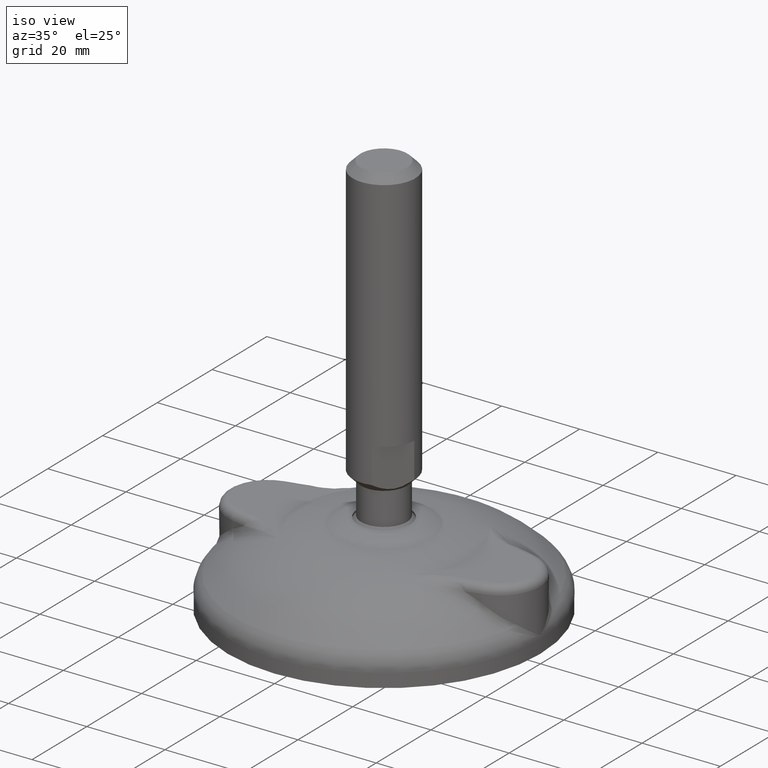
[diagram: clean part render]
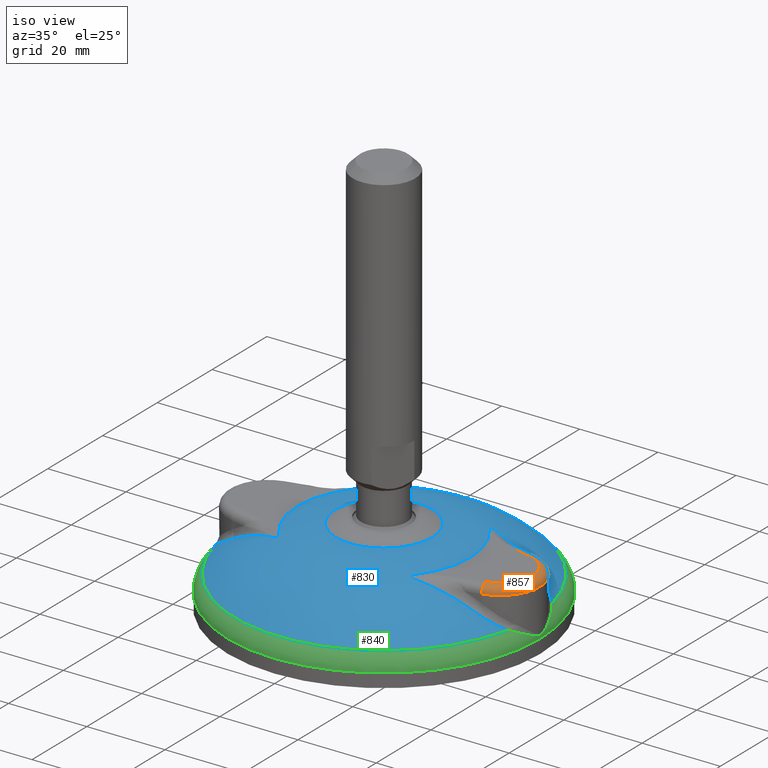
[diagram: same view with three faces highlighted in distinct colors, each labeled with its STEP entity id]
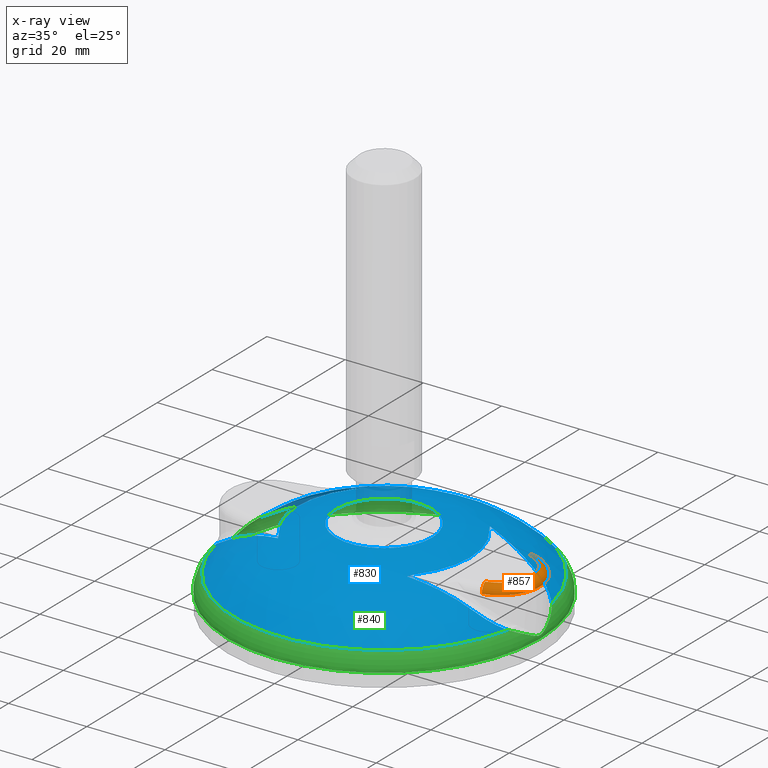
[diagram: x-ray of the same camera — body ghosted, the three highlighted faces saturated]
A machine part, iso view with three faces highlighted in distinct colors.
The next image is the same camera in x-ray (body ghosted, the three faces saturated) — at least one of them is partly hidden behind the body in this view.
Their STEP definitions:

[orange] entity #857 — the highlighted toroidal blend (fillet) surface has major radius 8.271 mm and minor (blend) radius 2 mm.
#16=TOROIDAL_SURFACE('',#959,8.2709865184655,2.);
#180=FACE_OUTER_BOUND('',#232,.T.);
#232=EDGE_LOOP('',(#684,#685,#686,#687));
#277=CIRCLE('',#939,10.2709865184655);
#287=CIRCLE('',#955,8.2709865184655);
#289=CIRCLE('',#958,2.);
#290=CIRCLE('',#960,2.);
#351=VERTEX_POINT('',#1614);
#355=VERTEX_POINT('',#1642);
#365=VERTEX_POINT('',#1929);
#366=VERTEX_POINT('',#1931);
#450=EDGE_CURVE('',#355,#351,#277,.T.);
#474=EDGE_CURVE('',#366,#365,#287,.T.);
#478=EDGE_CURVE('',#365,#355,#289,.T.);
#479=EDGE_CURVE('',#366,#351,#290,.T.);
#684=ORIENTED_EDGE('',*,*,#478,.T.);
#685=ORIENTED_EDGE('',*,*,#450,.T.);
#686=ORIENTED_EDGE('',*,*,#479,.F.);
#687=ORIENTED_EDGE('',*,*,#474,.T.);
#857=ADVANCED_FACE('',(#180),#16,.T.);
#939=AXIS2_PLACEMENT_3D('',#1643,#1090,#1091);
#955=AXIS2_PLACEMENT_3D('',#1932,#1127,#1128);
#958=AXIS2_PLACEMENT_3D('',#1977,#1134,#1135);
#959=AXIS2_PLACEMENT_3D('',#1978,#1136,#1137);
#960=AXIS2_PLACEMENT_3D('',#1979,#1138,#1139);
#1090=DIRECTION('center_axis',(0.,0.,1.));
#1091=DIRECTION('ref_axis',(1.,1.09042397371664E-16,0.));
#1127=DIRECTION('center_axis',(0.,0.,-1.));
#1128=DIRECTION('ref_axis',(1.,1.09042397371664E-16,0.));
#1134=DIRECTION('center_axis',(0.973616310567801,0.228191322789329,0.));
#1135=DIRECTION('ref_axis',(0.,0.,1.));
#1136=DIRECTION('center_axis',(0.,0.,-1.));
#1137=DIRECTION('ref_axis',(1.,-1.22464679914735E-16,0.));
#1138=DIRECTION('center_axis',(-0.973616310567802,0.228191322789324,0.));
#1139=DIRECTION('ref_axis',(0.,0.,1.));
#1614=CARTESIAN_POINT('',(32.,10.,12.));
#1642=CARTESIAN_POINT('',(32.,-10.,12.));
#1643=CARTESIAN_POINT('Origin',(29.65625,-9.74996872036752E-18,12.));
#1929=CARTESIAN_POINT('',(31.5436173544213,-8.0527673788644,14.));
#1931=CARTESIAN_POINT('',(31.5436173544214,8.0527673788644,14.));
#1932=CARTESIAN_POINT('Origin',(29.65625,-9.74996872036752E-18,14.));
#1977=CARTESIAN_POINT('Origin',(31.5436173544213,-8.0527673788644,12.));
#1978=CARTESIAN_POINT('Origin',(29.65625,-9.74996872036752E-18,12.));
#1979=CARTESIAN_POINT('Origin',(31.5436173544214,8.0527673788644,12.));

[blue] entity #830 — the highlighted face is a freeform B-spline surface patch.
#31=B_SPLINE_CURVE_WITH_KNOTS('',3,(#1319,#1320,#1321,#1322,#1323,#1324,
#1325,#1326),.UNSPECIFIED.,.F.,.F.,(4,2,2,4),(0.,0.0418705369611495,0.232590267462161,
0.233354513829285),.UNSPECIFIED.);
#32=B_SPLINE_CURVE_WITH_KNOTS('',3,(#1328,#1329,#1330,#1331),
 .UNSPECIFIED.,.F.,.F.,(4,4),(-7.04243497202806,-5.3411088199128),
 .UNSPECIFIED.);
#33=B_SPLINE_CURVE_WITH_KNOTS('',3,(#1333,#1334,#1335,#1336),
 .UNSPECIFIED.,.F.,.F.,(4,4),(-0.839061964769756,0.),.UNSPECIFIED.);
#34=B_SPLINE_CURVE_WITH_KNOTS('',3,(#1340,#1341,#1342,#1343),
 .UNSPECIFIED.,.F.,.F.,(4,4),(-0.839061939766874,-9.17735381124401E-16),
 .UNSPECIFIED.);
#35=B_SPLINE_CURVE_WITH_KNOTS('',3,(#1345,#1346,#1347,#1348),
 .UNSPECIFIED.,.F.,.F.,(4,4),(-1.70132615995025,-1.66001615647706E-13),
 .UNSPECIFIED.);
#36=B_SPLINE_CURVE_WITH_KNOTS('',3,(#1350,#1351,#1352,#1353,#1354,#1355,
#1356,#1357),.UNSPECIFIED.,.F.,.F.,(4,2,2,4),(-0.000439166772451707,0.,
0.0641830258663563,0.186330618976717),.UNSPECIFIED.);
#37=B_SPLINE_CURVE_WITH_KNOTS('',3,(#1361,#1362,#1363,#1364,#1365,#1366,
#1367,#1368),.UNSPECIFIED.,.F.,.F.,(4,2,2,4),(0.,0.0418705371959664,0.232589794513514,
0.2333540369542),.UNSPECIFIED.);
#38=B_SPLINE_CURVE_WITH_KNOTS('',3,(#1370,#1371,#1372,#1373),
 .UNSPECIFIED.,.F.,.F.,(4,4),(-7.04286143008731,-5.34153527013683),
 .UNSPECIFIED.);
#39=B_SPLINE_CURVE_WITH_KNOTS('',3,(#1375,#1376,#1377,#1378),
 .UNSPECIFIED.,.F.,.F.,(4,4),(-0.839061964743585,0.),.UNSPECIFIED.);
#40=B_SPLINE_CURVE_WITH_KNOTS('',3,(#1382,#1383,#1384,#1385),
 .UNSPECIFIED.,.F.,.F.,(4,4),(-0.8390619397944,0.),.UNSPECIFIED.);
#41=B_SPLINE_CURVE_WITH_KNOTS('',3,(#1387,#1388,#1389,#1390),
 .UNSPECIFIED.,.F.,.F.,(4,4),(-1.70132615211504,-1.66883399914962E-13),
 .UNSPECIFIED.);
#42=B_SPLINE_CURVE_WITH_KNOTS('',3,(#1392,#1393,#1394,#1395,#1396,#1397,
#1398,#1399),.UNSPECIFIED.,.F.,.F.,(4,2,2,4),(-0.000439167174680318,0.,
0.0641830395054684,0.186330692570166),.UNSPECIFIED.);
#64=(
BOUNDED_CURVE()
B_SPLINE_CURVE(2,(#1313,#1314,#1315),.UNSPECIFIED.,.F.,.F.)
B_SPLINE_CURVE_WITH_KNOTS((3,3),(-1.49153894377298,-1.25256428449082),
 .UNSPECIFIED.)
CURVE()
GEOMETRIC_REPRESENTATION_ITEM()
RATIONAL_B_SPLINE_CURVE((1.,0.979638738472148,0.973414302168379))
REPRESENTATION_ITEM('')
);
#68=(
BOUNDED_SURFACE()
B_SPLINE_SURFACE(2,2,((#1285,#1286,#1287,#1288,#1289,#1290,#1291,#1292,
#1293),(#1294,#1295,#1296,#1297,#1298,#1299,#1300,#1301,#1302),(#1303,#1304,
#1305,#1306,#1307,#1308,#1309,#1310,#1311)),.UNSPECIFIED.,.F.,.T.,.F.)
B_SPLINE_SURFACE_WITH_KNOTS((3,3),(3,2,2,2,3),(0.803148805386866,1.49153894377298),
(-3.14159265358979,-1.5707963267949,0.,1.5707963267949,3.14159265358979),
 .UNSPECIFIED.)
GEOMETRIC_REPRESENTATION_ITEM()
RATIONAL_B_SPLINE_SURFACE(((1.,0.707106781186548,1.,0.707106781186548,1.,
0.707106781186548,1.,0.707106781186548,1.),(0.941347372633662,0.665633110641402,
0.941347372633662,0.665633110641402,0.941347372633662,0.665633110641402,
0.941347372633662,0.665633110641402,0.941347372633662),(1.,0.707106781186548,
1.,0.707106781186548,1.,0.707106781186548,1.,0.707106781186548,1.)))
REPRESENTATION_ITEM('')
SURFACE()
);
#153=FACE_OUTER_BOUND('',#205,.T.);
#205=EDGE_LOOP('',(#549,#550,#551,#552,#553,#554,#555,#556,#557,#558,#559,
#560,#561,#562,#563,#564,#565,#566,#567,#568,#569));
#263=CIRCLE('',#919,12.3253260654872);
#264=CIRCLE('',#920,12.3253260654872);
#265=CIRCLE('',#921,22.103331811743);
#266=CIRCLE('',#922,38.1666666666667);
#267=CIRCLE('',#923,22.103331811743);
#268=CIRCLE('',#924,38.1666666666667);
#269=CIRCLE('',#925,22.103331811743);
#323=VERTEX_POINT('',#1280);
#324=VERTEX_POINT('',#1282);
#325=VERTEX_POINT('',#1312);
#326=VERTEX_POINT('',#1316);
#327=VERTEX_POINT('',#1318);
#328=VERTEX_POINT('',#1327);
#329=VERTEX_POINT('',#1332);
#330=VERTEX_POINT('',#1337);
#331=VERTEX_POINT('',#1339);
#332=VERTEX_POINT('',#1344);
#333=VERTEX_POINT('',#1349);
#334=VERTEX_POINT('',#1358);
#335=VERTEX_POINT('',#1360);
#336=VERTEX_POINT('',#1369);
#337=VERTEX_POINT('',#1374);
#338=VERTEX_POINT('',#1379);
#339=VERTEX_POINT('',#1381);
#340=VERTEX_POINT('',#1386);
#341=VERTEX_POINT('',#1391);
#406=EDGE_CURVE('',#323,#324,#263,.T.);
#407=EDGE_CURVE('',#324,#323,#264,.T.);
#408=EDGE_CURVE('',#323,#325,#64,.T.);
#409=EDGE_CURVE('',#325,#326,#265,.T.);
#410=EDGE_CURVE('',#327,#326,#31,.F.);
#411=EDGE_CURVE('',#328,#327,#32,.T.);
#412=EDGE_CURVE('',#329,#328,#33,.T.);
#413=EDGE_CURVE('',#329,#330,#266,.T.);
#414=EDGE_CURVE('',#331,#330,#34,.T.);
#415=EDGE_CURVE('',#332,#331,#35,.T.);
#416=EDGE_CURVE('',#333,#332,#36,.F.);
#417=EDGE_CURVE('',#333,#334,#267,.T.);
#418=EDGE_CURVE('',#335,#334,#37,.F.);
#419=EDGE_CURVE('',#336,#335,#38,.T.);
#420=EDGE_CURVE('',#337,#336,#39,.T.);
#421=EDGE_CURVE('',#337,#338,#268,.T.);
#422=EDGE_CURVE('',#339,#338,#40,.T.);
#423=EDGE_CURVE('',#340,#339,#41,.T.);
#424=EDGE_CURVE('',#341,#340,#42,.F.);
#425=EDGE_CURVE('',#341,#325,#269,.T.);
#549=ORIENTED_EDGE('',*,*,#407,.F.);
#550=ORIENTED_EDGE('',*,*,#406,.F.);
#551=ORIENTED_EDGE('',*,*,#408,.T.);
#552=ORIENTED_EDGE('',*,*,#409,.T.);
#553=ORIENTED_EDGE('',*,*,#410,.F.);
#554=ORIENTED_EDGE('',*,*,#411,.F.);
#555=ORIENTED_EDGE('',*,*,#412,.F.);
#556=ORIENTED_EDGE('',*,*,#413,.T.);
#557=ORIENTED_EDGE('',*,*,#414,.F.);
#558=ORIENTED_EDGE('',*,*,#415,.F.);
#559=ORIENTED_EDGE('',*,*,#416,.F.);
#560=ORIENTED_EDGE('',*,*,#417,.T.);
#561=ORIENTED_EDGE('',*,*,#418,.F.);
#562=ORIENTED_EDGE('',*,*,#419,.F.);
#563=ORIENTED_EDGE('',*,*,#420,.F.);
#564=ORIENTED_EDGE('',*,*,#421,.T.);
#565=ORIENTED_EDGE('',*,*,#422,.F.);
#566=ORIENTED_EDGE('',*,*,#423,.F.);
#567=ORIENTED_EDGE('',*,*,#424,.F.);
#568=ORIENTED_EDGE('',*,*,#425,.T.);
#569=ORIENTED_EDGE('',*,*,#408,.F.);
#830=ADVANCED_FACE('',(#153),#68,.F.);
#919=AXIS2_PLACEMENT_3D('',#1283,#1044,#1045);
#920=AXIS2_PLACEMENT_3D('',#1284,#1046,#1047);
#921=AXIS2_PLACEMENT_3D('',#1317,#1048,#1049);
#922=AXIS2_PLACEMENT_3D('',#1338,#1050,#1051);
#923=AXIS2_PLACEMENT_3D('',#1359,#1052,#1053);
#924=AXIS2_PLACEMENT_3D('',#1380,#1054,#1055);
#925=AXIS2_PLACEMENT_3D('',#1400,#1056,#1057);
#1044=DIRECTION('center_axis',(0.,0.,1.));
#1045=DIRECTION('ref_axis',(-1.,0.,0.));
#1046=DIRECTION('center_axis',(0.,0.,1.));
#1047=DIRECTION('ref_axis',(-1.,0.,0.));
#1048=DIRECTION('center_axis',(0.,0.,1.));
#1049=DIRECTION('ref_axis',(1.,0.,0.));
#1050=DIRECTION('center_axis',(0.,0.,1.));
#1051=DIRECTION('ref_axis',(-1.,0.,0.));
#1052=DIRECTION('center_axis',(0.,0.,1.));
#1053=DIRECTION('ref_axis',(1.,0.,0.));
#1054=DIRECTION('center_axis',(0.,0.,1.));
#1055=DIRECTION('ref_axis',(-1.,0.,0.));
#1056=DIRECTION('center_axis',(0.,0.,1.));
#1057=DIRECTION('ref_axis',(1.,0.,0.));
#1280=CARTESIAN_POINT('',(-12.3253260654872,-1.50941711145463E-15,15.9644849588231));
#1282=CARTESIAN_POINT('',(12.3253260654872,0.,15.9644849588231));
#1283=CARTESIAN_POINT('Origin',(0.,0.,15.9644849588231));
#1284=CARTESIAN_POINT('Origin',(0.,0.,15.9644849588231));
#1285=CARTESIAN_POINT('Ctrl Pts',(-38.1666666666667,0.,4.31727794899621));
#1286=CARTESIAN_POINT('Ctrl Pts',(-38.1666666666667,-38.1666666666667,4.31727794899621));
#1287=CARTESIAN_POINT('Ctrl Pts',(0.,-38.1666666666667,4.31727794899621));
#1288=CARTESIAN_POINT('Ctrl Pts',(38.1666666666667,-38.1666666666667,4.31727794899621));
#1289=CARTESIAN_POINT('Ctrl Pts',(38.1666666666667,0.,4.31727794899621));
#1290=CARTESIAN_POINT('Ctrl Pts',(38.1666666666667,38.1666666666667,4.31727794899621));
#1291=CARTESIAN_POINT('Ctrl Pts',(0.,38.1666666666667,4.31727794899621));
#1292=CARTESIAN_POINT('Ctrl Pts',(-38.1666666666667,38.1666666666667,4.31727794899621));
#1293=CARTESIAN_POINT('Ctrl Pts',(-38.1666666666667,0.,4.31727794899621));
#1294=CARTESIAN_POINT('Ctrl Pts',(-27.333548093791,0.,14.772475549638));
#1295=CARTESIAN_POINT('Ctrl Pts',(-27.333548093791,-27.333548093791,14.772475549638));
#1296=CARTESIAN_POINT('Ctrl Pts',(0.,-27.333548093791,14.772475549638));
#1297=CARTESIAN_POINT('Ctrl Pts',(27.333548093791,-27.333548093791,14.772475549638));
#1298=CARTESIAN_POINT('Ctrl Pts',(27.333548093791,0.,14.772475549638));
#1299=CARTESIAN_POINT('Ctrl Pts',(27.333548093791,27.333548093791,14.772475549638));
#1300=CARTESIAN_POINT('Ctrl Pts',(0.,27.333548093791,14.772475549638));
#1301=CARTESIAN_POINT('Ctrl Pts',(-27.333548093791,27.333548093791,14.772475549638));
#1302=CARTESIAN_POINT('Ctrl Pts',(-27.333548093791,0.,14.772475549638));
#1303=CARTESIAN_POINT('Ctrl Pts',(-12.3253260654872,0.,15.9644849588231));
#1304=CARTESIAN_POINT('Ctrl Pts',(-12.3253260654872,-12.3253260654872,15.9644849588231));
#1305=CARTESIAN_POINT('Ctrl Pts',(0.,-12.3253260654872,15.9644849588231));
#1306=CARTESIAN_POINT('Ctrl Pts',(12.3253260654872,-12.3253260654872,15.9644849588231));
#1307=CARTESIAN_POINT('Ctrl Pts',(12.3253260654872,0.,15.9644849588231));
#1308=CARTESIAN_POINT('Ctrl Pts',(12.3253260654872,12.3253260654872,15.9644849588231));
#1309=CARTESIAN_POINT('Ctrl Pts',(0.,12.3253260654872,15.9644849588231));
#1310=CARTESIAN_POINT('Ctrl Pts',(-12.3253260654872,12.3253260654872,15.9644849588231));
#1311=CARTESIAN_POINT('Ctrl Pts',(-12.3253260654872,0.,15.9644849588231));
#1312=CARTESIAN_POINT('',(-22.103331811743,-2.7068774553743E-15,14.));
#1313=CARTESIAN_POINT('Ctrl Pts',(-12.3253260654872,0.,15.9644849588231));
#1314=CARTESIAN_POINT('Ctrl Pts',(-17.3317822687146,0.,15.5668533879637));
#1315=CARTESIAN_POINT('Ctrl Pts',(-22.1033318117459,0.,13.9999999999991));
#1316=CARTESIAN_POINT('',(-17.4998852429205,-13.502269944888,14.));
#1317=CARTESIAN_POINT('Origin',(0.,0.,14.));
#1318=CARTESIAN_POINT('',(-16.5368793563796,-15.1364767589044,13.8951833846989));
#1319=CARTESIAN_POINT('Ctrl Pts',(-17.4998852429205,-13.5022699448879,14.));
#1320=CARTESIAN_POINT('Ctrl Pts',(-17.4146270116273,-13.6127705695781,14.));
#1321=CARTESIAN_POINT('Ctrl Pts',(-17.3310233902497,-13.7253187104316,13.9987227035716));
#1322=CARTESIAN_POINT('Ctrl Pts',(-16.8828476147189,-14.3576838160795,13.9835588262045));
#1323=CARTESIAN_POINT('Ctrl Pts',(-16.6563703578516,-14.7900737734183,13.9442940424903));
#1324=CARTESIAN_POINT('Ctrl Pts',(-16.5378222687743,-15.1337325564738,13.895573518545));
#1325=CARTESIAN_POINT('Ctrl Pts',(-16.5373502452516,-15.1351044957384,13.8953786565809));
#1326=CARTESIAN_POINT('Ctrl Pts',(-16.5368793563796,-15.1364767589044,13.8951833846989));
#1327=CARTESIAN_POINT('',(-31.3649999849036,-11.5454933802503,8.26565855632619));
#1328=CARTESIAN_POINT('Ctrl Pts',(-31.3649999849036,-11.5454933802503,8.26565855632619));
#1329=CARTESIAN_POINT('Ctrl Pts',(-26.8280861645054,-12.6360226056521,11.0395328161692));
#1330=CARTESIAN_POINT('Ctrl Pts',(-21.7694640936981,-13.8628021931783,12.8837722442751));
#1331=CARTESIAN_POINT('Ctrl Pts',(-16.5368793563796,-15.1364767589044,13.8951833846989));
#1332=CARTESIAN_POINT('',(-37.3112884309751,-8.03506067587721,4.31727794899621));
#1333=CARTESIAN_POINT('Ctrl Pts',(-37.3112884309751,-8.03506067587721,4.31727794899621));
#1334=CARTESIAN_POINT('Ctrl Pts',(-35.6803049868277,-9.81703109494362,5.49402250576028));
#1335=CARTESIAN_POINT('Ctrl Pts',(-33.6025202977497,-11.0076649377911,6.8976360971442));
#1336=CARTESIAN_POINT('Ctrl Pts',(-31.3649999849036,-11.5454933802503,8.26565855632619));
#1337=CARTESIAN_POINT('',(37.3112884309751,-8.03506067587723,4.31727794899622));
#1338=CARTESIAN_POINT('Origin',(0.,0.,4.3172779489962));
#1339=CARTESIAN_POINT('',(31.3649999849018,-11.5454933802508,8.26565855632729));
#1340=CARTESIAN_POINT('Ctrl Pts',(31.3649999849018,-11.5454933802508,8.26565855632729));
#1341=CARTESIAN_POINT('Ctrl Pts',(33.602520231073,-11.0076649538185,6.89763613791048));
#1342=CARTESIAN_POINT('Ctrl Pts',(35.6803050354287,-9.81703104184339,5.49402247069493));
#1343=CARTESIAN_POINT('Ctrl Pts',(37.3112884309751,-8.03506067587723,4.31727794899622));
#1344=CARTESIAN_POINT('',(16.5368793563796,-15.1364767589044,13.8951833846989));
#1345=CARTESIAN_POINT('Ctrl Pts',(16.5368793563796,-15.1364767589044,13.8951833846989));
#1346=CARTESIAN_POINT('Ctrl Pts',(21.7694641512635,-13.8628021791661,12.8837722331482));
#1347=CARTESIAN_POINT('Ctrl Pts',(26.828086143609,-12.6360226106749,11.0395328289448));
#1348=CARTESIAN_POINT('Ctrl Pts',(31.3649999849005,-11.5454933802511,8.26565855632811));
#1349=CARTESIAN_POINT('',(17.4998852429205,-13.502269944888,14.));
#1350=CARTESIAN_POINT('Ctrl Pts',(16.5368793563796,-15.1364767589044,13.8951833846989));
#1351=CARTESIAN_POINT('Ctrl Pts',(16.5373502450403,-15.1351044963541,13.8953786564933));
#1352=CARTESIAN_POINT('Ctrl Pts',(16.5378222689497,-15.1337325559697,13.8955735186161));
#1353=CARTESIAN_POINT('Ctrl Pts',(16.6074444337237,-14.931905022288,13.9241866188126));
#1354=CARTESIAN_POINT('Ctrl Pts',(16.7035466089207,-14.7295790623115,13.9451208455824));
#1355=CARTESIAN_POINT('Ctrl Pts',(17.0020000121204,-14.1836636219215,13.9887445528742));
#1356=CARTESIAN_POINT('Ctrl Pts',(17.2491129496829,-13.8272883582122,14.));
#1357=CARTESIAN_POINT('Ctrl Pts',(17.4998852429205,-13.5022699448879,14.));
#1358=CARTESIAN_POINT('',(17.4998852429205,13.502269944888,14.));
#1359=CARTESIAN_POINT('Origin',(0.,0.,14.));
#1360=CARTESIAN_POINT('',(16.5368793563795,15.1364767589044,13.8951833846989));
#1361=CARTESIAN_POINT('Ctrl Pts',(17.4998852429205,13.502269944888,14.));
#1362=CARTESIAN_POINT('Ctrl Pts',(17.4146270111492,13.6127705701978,14.));
#1363=CARTESIAN_POINT('Ctrl Pts',(17.3310233893096,13.7253187116971,13.9987227035572));
#1364=CARTESIAN_POINT('Ctrl Pts',(16.8828485252605,14.3576825316054,13.9835588569328));
#1365=CARTESIAN_POINT('Ctrl Pts',(16.656370740445,14.7900726646691,13.9442941996477));
#1366=CARTESIAN_POINT('Ctrl Pts',(16.5378222684963,15.1337325572741,13.895573518432));
#1367=CARTESIAN_POINT('Ctrl Pts',(16.5373502455259,15.1351044949388,13.8953786566947));
#1368=CARTESIAN_POINT('Ctrl Pts',(16.5368793563796,15.1364767589044,13.8951833846989));
#1369=CARTESIAN_POINT('',(31.3649999849036,11.5454933802503,8.26565855632619));
#1370=CARTESIAN_POINT('Ctrl Pts',(31.3649999849036,11.5454933802503,8.26565855632619));
#1371=CARTESIAN_POINT('Ctrl Pts',(26.8280861436113,12.6360226106744,11.0395328289439));
#1372=CARTESIAN_POINT('Ctrl Pts',(21.7694641512647,13.8628021791658,12.883772233148));
#1373=CARTESIAN_POINT('Ctrl Pts',(16.5368793563795,15.1364767589044,13.8951833846989));
#1374=CARTESIAN_POINT('',(37.3112884309751,8.03506067587722,4.31727794899621));
#1375=CARTESIAN_POINT('Ctrl Pts',(37.3112884309751,8.03506067587722,4.31727794899621));
#1376=CARTESIAN_POINT('Ctrl Pts',(35.6803049868785,9.81703109488804,5.49402250572358));
#1377=CARTESIAN_POINT('Ctrl Pts',(33.6025202976799,11.0076649378079,6.89763609718687));
#1378=CARTESIAN_POINT('Ctrl Pts',(31.3649999849036,11.5454933802503,8.26565855632619));
#1379=CARTESIAN_POINT('',(-37.3112884309751,8.03506067587722,4.31727794899621));
#1380=CARTESIAN_POINT('Origin',(0.,0.,4.3172779489962));
#1381=CARTESIAN_POINT('',(-31.3649999849018,11.5454933802508,8.26565855632729));
#1382=CARTESIAN_POINT('Ctrl Pts',(-31.3649999849018,11.5454933802508,8.26565855632729));
#1383=CARTESIAN_POINT('Ctrl Pts',(-33.6025202311464,11.0076649538008,6.89763613786561));
#1384=CARTESIAN_POINT('Ctrl Pts',(-35.6803050353752,9.81703104190184,5.49402247073354));
#1385=CARTESIAN_POINT('Ctrl Pts',(-37.3112884309751,8.03506067587722,4.31727794899622));
#1386=CARTESIAN_POINT('',(-16.5368793563796,15.1364767589044,13.8951833846989));
#1387=CARTESIAN_POINT('Ctrl Pts',(-16.5368793563796,15.1364767589044,13.8951833846989));
#1388=CARTESIAN_POINT('Ctrl Pts',(-21.7694640936969,13.8628021931785,12.8837722442753));
#1389=CARTESIAN_POINT('Ctrl Pts',(-26.8280861645031,12.6360226056527,11.0395328161701));
#1390=CARTESIAN_POINT('Ctrl Pts',(-31.3649999849005,11.5454933802511,8.26565855632811));
#1391=CARTESIAN_POINT('',(-17.4998852429205,13.502269944888,14.));
#1392=CARTESIAN_POINT('Ctrl Pts',(-16.5368793563796,15.1364767589044,13.8951833846989));
#1393=CARTESIAN_POINT('Ctrl Pts',(-16.5373502454716,15.1351044950973,13.8953786566721));
#1394=CARTESIAN_POINT('Ctrl Pts',(-16.5378222685124,15.1337325572283,13.8955735184384));
#1395=CARTESIAN_POINT('Ctrl Pts',(-16.6074444485162,14.9319049797233,13.9241866248198));
#1396=CARTESIAN_POINT('Ctrl Pts',(-16.7035466389036,14.7295790072514,13.9451208500206));
#1397=CARTESIAN_POINT('Ctrl Pts',(-17.0020000131662,14.1836636204212,13.988744552921));
#1398=CARTESIAN_POINT('Ctrl Pts',(-17.2491129501895,13.8272883575556,14.));
#1399=CARTESIAN_POINT('Ctrl Pts',(-17.4998852429205,13.5022699448879,14.));
#1400=CARTESIAN_POINT('Origin',(0.,0.,14.));

[green] entity #840 — the highlighted toroidal blend (fillet) surface has major radius 34 mm and minor (blend) radius 6 mm.
#14=TOROIDAL_SURFACE('',#935,34.,6.);
#49=B_SPLINE_CURVE_WITH_KNOTS('',3,(#1548,#1549,#1550,#1551,#1552,#1553,
#1554,#1555),.UNSPECIFIED.,.F.,.F.,(4,1,1,1,1,4),(-2.06765648479847,-1.77227698697011,
-1.47689748914176,-1.32920774022759,-1.18151799131341,-1.03387371215638),
 .UNSPECIFIED.);
#50=B_SPLINE_CURVE_WITH_KNOTS('',3,(#1556,#1557,#1558,#1559,#1560,#1561,
#1562,#1563,#1564),.UNSPECIFIED.,.F.,.F.,(4,1,1,1,1,1,4),(-1.03385630241122,
-1.03382824239923,-0.886138493485057,-0.812293619027969,-0.738448744570881,
-0.590758995656705,0.),.UNSPECIFIED.);
#53=B_SPLINE_CURVE_WITH_KNOTS('',3,(#1624,#1625,#1626,#1627,#1628,#1629,
#1630,#1631,#1632,#1633,#1634,#1635,#1636,#1637),.UNSPECIFIED.,.F.,.F.,
(4,1,1,1,1,1,1,1,1,1,1,4),(-2.06765648479848,-1.77227698697012,-1.47689748914177,
-1.32920774022759,-1.18151799131341,-1.03382824239924,-0.886138493485061,
-0.812293619027972,-0.738448744570884,-0.590758995656707,-0.295379497828354,
0.),.UNSPECIFIED.);
#163=FACE_OUTER_BOUND('',#215,.T.);
#215=EDGE_LOOP('',(#606,#607,#608,#609,#610,#611,#612,#613));
#266=CIRCLE('',#922,38.1666666666667);
#268=CIRCLE('',#924,38.1666666666667);
#275=CIRCLE('',#936,6.);
#276=CIRCLE('',#937,40.);
#329=VERTEX_POINT('',#1332);
#330=VERTEX_POINT('',#1337);
#337=VERTEX_POINT('',#1374);
#338=VERTEX_POINT('',#1379);
#350=VERTEX_POINT('',#1547);
#354=VERTEX_POINT('',#1638);
#413=EDGE_CURVE('',#329,#330,#266,.T.);
#421=EDGE_CURVE('',#337,#338,#268,.T.);
#439=EDGE_CURVE('',#338,#350,#49,.T.);
#440=EDGE_CURVE('',#350,#329,#50,.T.);
#447=EDGE_CURVE('',#330,#337,#53,.T.);
#448=EDGE_CURVE('',#350,#354,#275,.T.);
#449=EDGE_CURVE('',#354,#354,#276,.T.);
#606=ORIENTED_EDGE('',*,*,#447,.F.);
#607=ORIENTED_EDGE('',*,*,#413,.F.);
#608=ORIENTED_EDGE('',*,*,#440,.F.);
#609=ORIENTED_EDGE('',*,*,#448,.T.);
#610=ORIENTED_EDGE('',*,*,#449,.T.);
#611=ORIENTED_EDGE('',*,*,#448,.F.);
#612=ORIENTED_EDGE('',*,*,#439,.F.);
#613=ORIENTED_EDGE('',*,*,#421,.F.);
#840=ADVANCED_FACE('',(#163),#14,.T.);
#922=AXIS2_PLACEMENT_3D('',#1338,#1050,#1051);
#924=AXIS2_PLACEMENT_3D('',#1380,#1054,#1055);
#935=AXIS2_PLACEMENT_3D('',#1623,#1082,#1083);
#936=AXIS2_PLACEMENT_3D('',#1639,#1084,#1085);
#937=AXIS2_PLACEMENT_3D('',#1640,#1086,#1087);
#1050=DIRECTION('center_axis',(0.,0.,1.));
#1051=DIRECTION('ref_axis',(-1.,0.,0.));
#1054=DIRECTION('center_axis',(0.,0.,1.));
#1055=DIRECTION('ref_axis',(-1.,0.,0.));
#1082=DIRECTION('center_axis',(0.,0.,1.));
#1083=DIRECTION('ref_axis',(1.,0.,0.));
#1084=DIRECTION('center_axis',(1.22464679914735E-16,-1.,0.));
#1085=DIRECTION('ref_axis',(-1.,-1.22464679914735E-16,0.));
#1086=DIRECTION('center_axis',(0.,0.,1.));
#1087=DIRECTION('ref_axis',(-1.,0.,0.));
#1332=CARTESIAN_POINT('',(-37.3112884309751,-8.03506067587721,4.31727794899621));
#1337=CARTESIAN_POINT('',(37.3112884309751,-8.03506067587723,4.31727794899622));
#1338=CARTESIAN_POINT('Origin',(0.,0.,4.3172779489962));
#1374=CARTESIAN_POINT('',(37.3112884309751,8.03506067587722,4.31727794899621));
#1379=CARTESIAN_POINT('',(-37.3112884309751,8.03506067587722,4.31727794899621));
#1380=CARTESIAN_POINT('Origin',(0.,0.,4.3172779489962));
#1547=CARTESIAN_POINT('',(-39.9454273888491,-5.07405805572122E-15,0.807399011593844));
#1548=CARTESIAN_POINT('Ctrl Pts',(-37.3099697174446,8.03268517146727,4.31900863553317));
#1549=CARTESIAN_POINT('Ctrl Pts',(-37.7943842410665,7.38632363287886,3.99354234846009));
#1550=CARTESIAN_POINT('Ctrl Pts',(-38.6316130148184,6.00921799398739,3.290577052425));
#1551=CARTESIAN_POINT('Ctrl Pts',(-39.3452797544981,4.15472013587357,2.3421065211532));
#1552=CARTESIAN_POINT('Ctrl Pts',(-39.7178619094262,2.58452465262021,1.58692109727184));
#1553=CARTESIAN_POINT('Ctrl Pts',(-39.8962934654592,1.38360518628389,1.05534138875722));
#1554=CARTESIAN_POINT('Ctrl Pts',(-39.9453265425223,0.462038737729867,0.807613749354414));
#1555=CARTESIAN_POINT('Ctrl Pts',(-39.9453639043737,-1.09877231510395E-9,
0.807390655365911));
#1556=CARTESIAN_POINT('Ctrl Pts',(-39.9454250304963,-0.00016368013505646,
0.806926677931503));
#1557=CARTESIAN_POINT('Ctrl Pts',(-39.9454250365126,-0.000251509925162929,
0.806926641098626));
#1558=CARTESIAN_POINT('Ctrl Pts',(-39.9454520570033,-0.462618782630042,
0.806756234871705));
#1559=CARTESIAN_POINT('Ctrl Pts',(-39.9087641185663,-1.15810434452123,0.992045812296393));
#1560=CARTESIAN_POINT('Ctrl Pts',(-39.8068733052676,-1.97997249723183,1.32243859709769));
#1561=CARTESIAN_POINT('Ctrl Pts',(-39.6708208598756,-2.78892821243158,1.68182047209622));
#1562=CARTESIAN_POINT('Ctrl Pts',(-39.1604372058884,-4.925411808723,2.71819903515069));
#1563=CARTESIAN_POINT('Ctrl Pts',(-38.2797833495261,-6.74170004651253,3.66630467862677));
#1564=CARTESIAN_POINT('Ctrl Pts',(-37.3112884309751,-8.0350606758772,4.3172779489962));
#1623=CARTESIAN_POINT('Origin',(0.,0.,0.));
#1624=CARTESIAN_POINT('Ctrl Pts',(37.3112884309751,-8.03506067587723,4.31727794899622));
#1625=CARTESIAN_POINT('Ctrl Pts',(37.7955358902506,-7.3883803611949,3.9917913138115));
#1626=CARTESIAN_POINT('Ctrl Pts',(38.6324130396451,-6.01065853065325,3.28893888965105));
#1627=CARTESIAN_POINT('Ctrl Pts',(39.3456970410017,-4.15565143319743,2.34083604302756));
#1628=CARTESIAN_POINT('Ctrl Pts',(39.7180714553828,-2.58508284555472,1.5860169072797));
#1629=CARTESIAN_POINT('Ctrl Pts',(39.8964215300512,-1.38384643550719,1.05466080128117));
#1630=CARTESIAN_POINT('Ctrl Pts',(39.969927279042,-0.00103299503217332,
0.683215415236275));
#1631=CARTESIAN_POINT('Ctrl Pts',(39.9088058330918,1.15785507419118,0.992002768279933));
#1632=CARTESIAN_POINT('Ctrl Pts',(39.8069247124031,1.97966925527079,1.32230740098908));
#1633=CARTESIAN_POINT('Ctrl Pts',(39.670876708375,2.78858776611213,1.68187608899113));
#1634=CARTESIAN_POINT('Ctrl Pts',(39.3461488470668,4.14795993289823,2.34049776342955));
#1635=CARTESIAN_POINT('Ctrl Pts',(38.6319121170533,6.01510992066498,3.2902227610459));
#1636=CARTESIAN_POINT('Ctrl Pts',(37.7955358902506,7.38838036119488,3.99179131381149));
#1637=CARTESIAN_POINT('Ctrl Pts',(37.3112884309751,8.03506067587722,4.31727794899621));
#1638=CARTESIAN_POINT('',(-40.,4.89858719658941E-15,0.));
#1639=CARTESIAN_POINT('Origin',(-34.,-4.163799117101E-15,0.));
#1640=CARTESIAN_POINT('Origin',(0.,0.,0.));